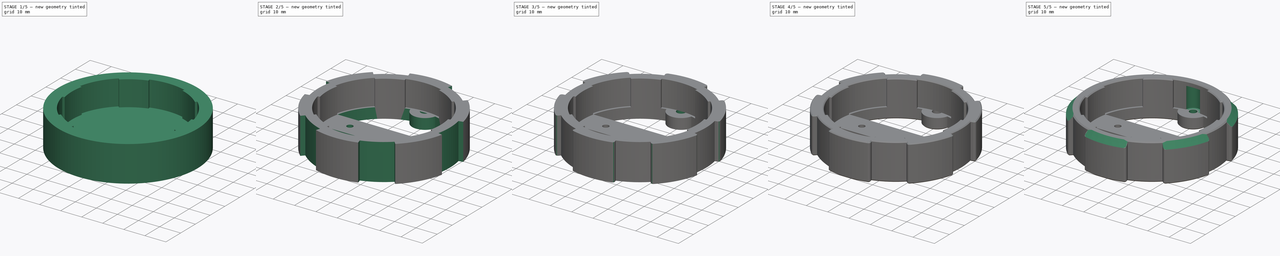
[diagram: build sequence overview — one tinted view per stage of 5, left to right]
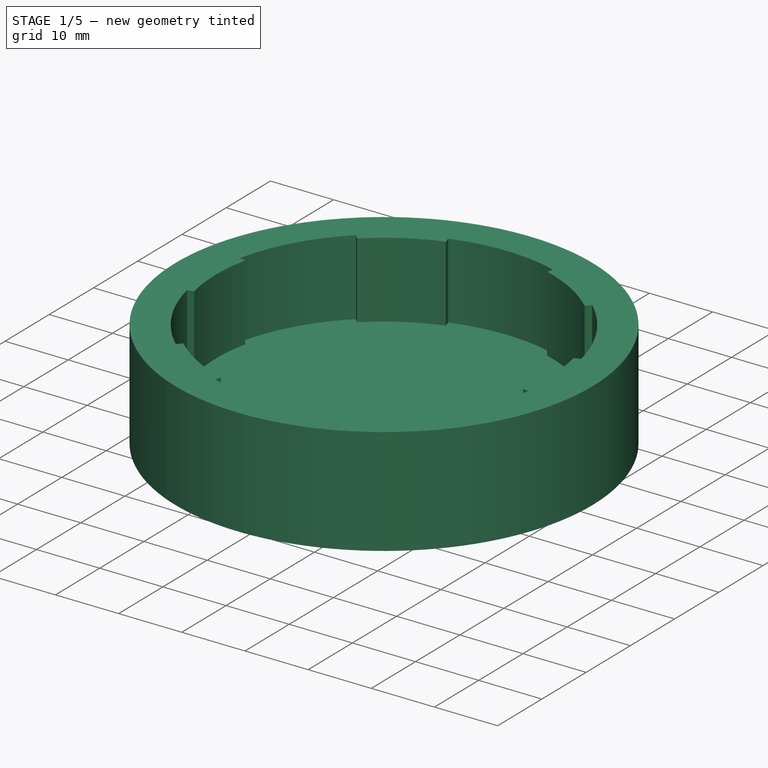
[diagram: stage 1 of 5 — iso view after this stage's code; geometry added in this stage tinted green]
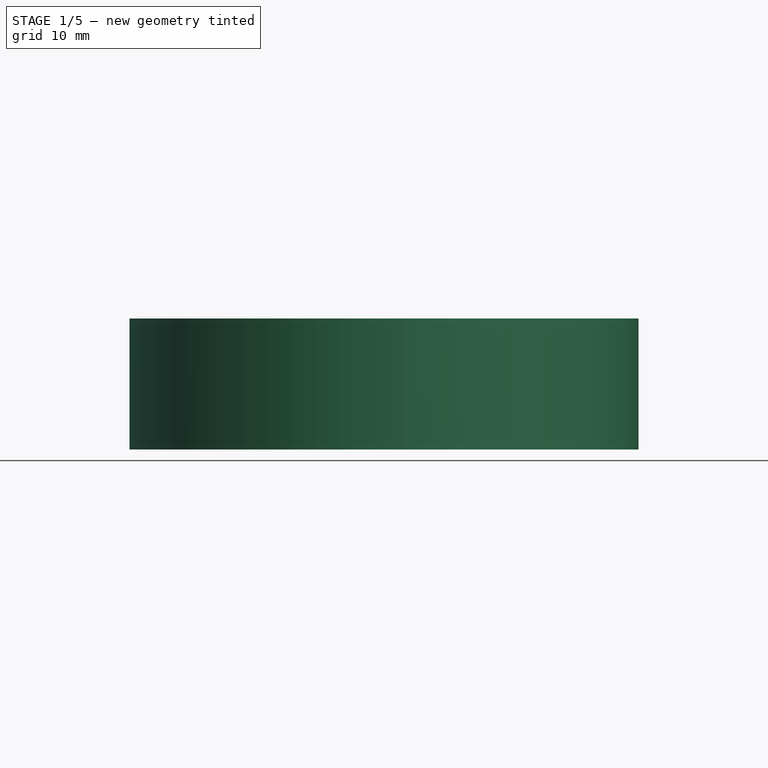
[diagram: stage 1 of 5 — front view after this stage's code; geometry added in this stage tinted green]
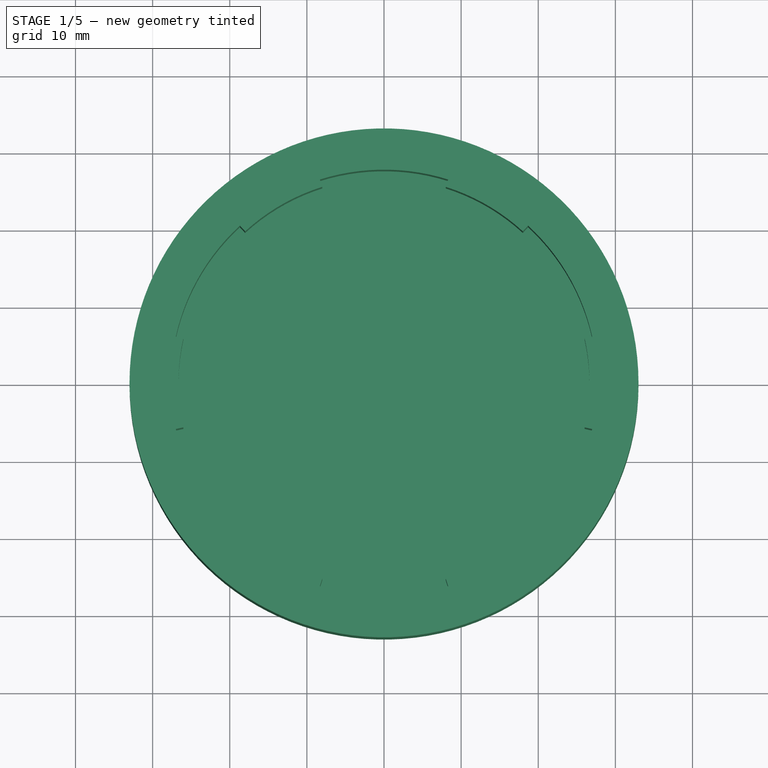
[diagram: stage 1 of 5 — top view after this stage's code; geometry added in this stage tinted green]
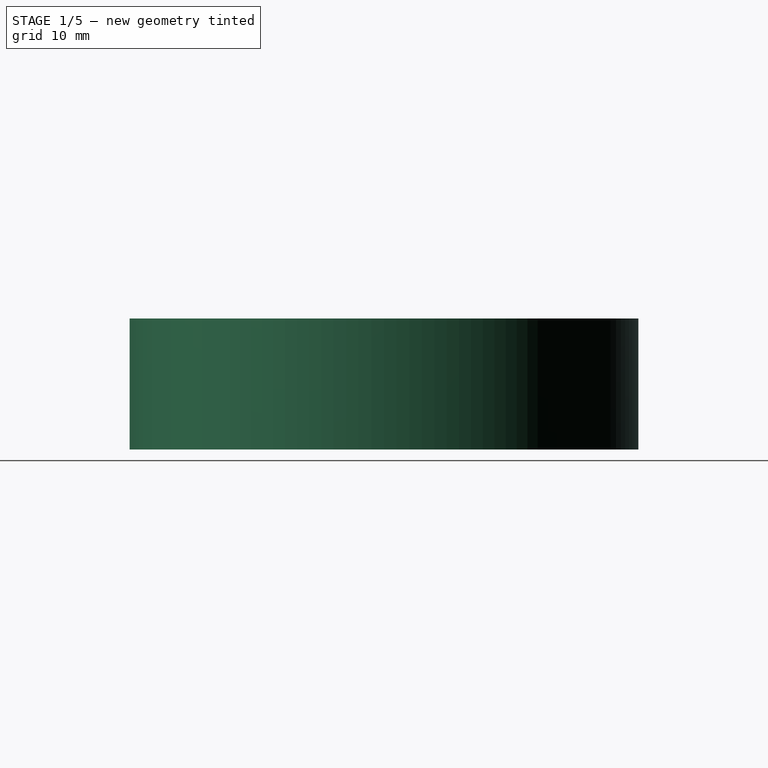
[diagram: stage 1 of 5 — right view after this stage's code; geometry added in this stage tinted green]
FCSTD DOCUMENT  (FreeCAD 0.19R24291 (Git))
Label: therrmometer-mount
License: All rights reserved
LicenseURL: http://en.wikipedia.org/wiki/All_rights_reserved
objects: Sketcher::SketchObject×14, PartDesign::Pocket×10, PartDesign::Pad×3, PartDesign::PolarPattern×2, PartDesign::Chamfer×2, Part::Feature×1, PartDesign::Fillet×1, PartDesign::Mirrored×1, PartDesign::Groove×1, PartDesign::Body×1
note: 53 computed .brp shape members not serialized (recipe doc carries the construction recipe); baked Part::Feature solids carry a one-line shape summary decoded from their .brp

FEATURE [Part::Feature] Body004018001  label="din-mount-type-003"
  Placement = pos=(0,-1,-18) rot=(0,0,1;3.14159rad)
FEATURE [Sketcher::SketchObject] Sketch006
  FullyConstrained = true
  MapMode = 5
  Support = -> [XY_Plane001]
  sketch-geometry (1):
    g0: Circle CenterX=0 CenterY=0 CenterZ=0 NormalX=0 NormalY=0 NormalZ=1 AngleXU=0 Radius=33
  constraints (2):
    c: Coincident(g0,g-1)
    c: Radius(g0) = 33
FEATURE [PartDesign::Pad] Pad001
  Direction = (1,1,1)
  Length = 17
  Length2 = 100
  Profile = -> Sketch006
  Type = 0
FEATURE [Sketcher::SketchObject] Sketch007
  FullyConstrained = true
  MapMode = 5
  Placement = pos=(0,0,17) rot=(0,0,1;0rad)
  Support = -> [Pad001]
  sketch-geometry (1):
    g0: Circle CenterX=0 CenterY=0 CenterZ=0 NormalX=0 NormalY=0 NormalZ=1 AngleXU=0 Radius=26.65
  constraints (2):
    c: Coincident(g0,g-1)
    c: Radius(g0) = 26.65
FEATURE [PartDesign::Pocket] Pocket005
  BaseFeature = -> Pad001
  Length = 12
  Length2 = 100
  Profile = -> Sketch007
  Type = 0
FEATURE [Sketcher::SketchObject] Sketch008
  FullyConstrained = true
  MapMode = 5
  Placement = pos=(0,0,17) rot=(0,0,1;0rad)
  Support = -> [Pocket005]
  sketch-geometry (3):
    g0: ArcOfCircle CenterX=0 CenterY=0 CenterZ=0 NormalX=0 NormalY=0 NormalZ=1 AngleXU=0 Radius=27.65 StartAngle=1.26536 EndAngle=1.87623
    g1: LineSegment StartX=-8.31452 StartY=26.3703 StartZ=0 EndX=0 EndY=0 EndZ=0
    g2: LineSegment StartX=0 StartY=0 StartZ=0 EndX=8.31452 EndY=26.3703 EndZ=0
  constraints (8):
    c: Coincident(g0,g-1)
    c: Coincident(g1,g0)
    c: Coincident(g1,g0)
    c: Coincident(g2,g0)
    c: Coincident(g2,g0)
    c: Radius(g0) = 27.65
    c: Angle(g2,g1) = 0.610865
    c: Angle(g2,g-2) = 0.305433
FEATURE [PartDesign::Pocket] Pocket006
  BaseFeature = -> Pocket005
  Length = 12
  Length2 = 100
  Profile = -> Sketch008
  Type = 0
FEATURE [PartDesign::PolarPattern] PolarPattern
  Angle = 360
  Axis = -> Sketch008 [N_Axis]
  BaseFeature = -> Pocket006
  Occurrences = 6
  Originals = -> [Pocket006]
  Refine = true
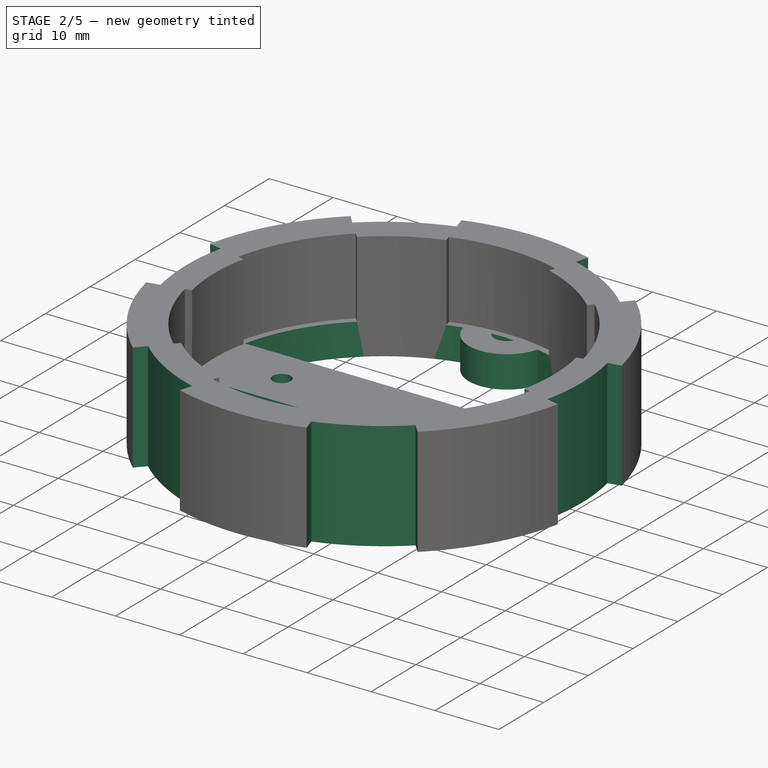
[diagram: stage 2 of 5 — iso view after this stage's code; geometry added in this stage tinted green]
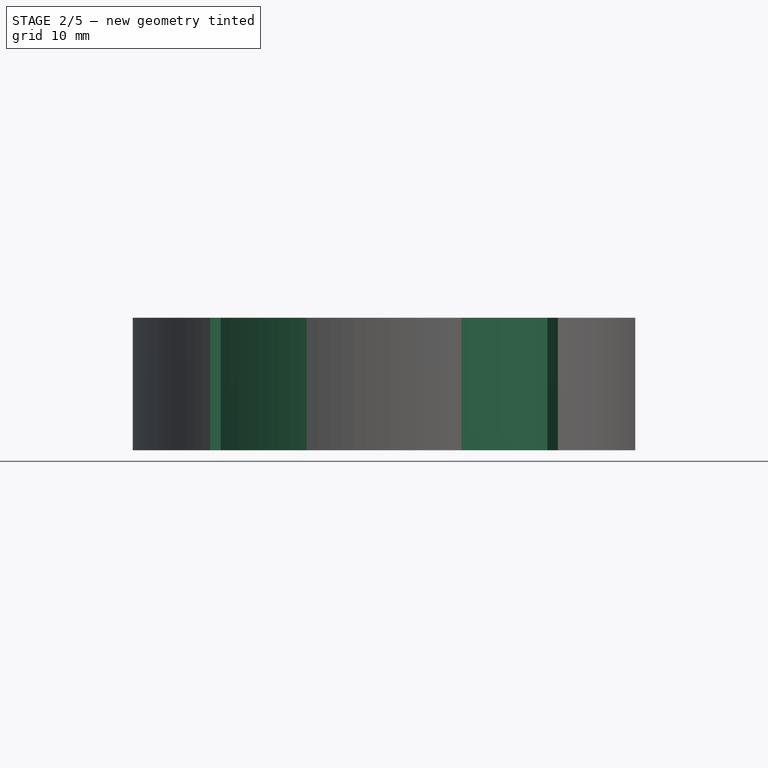
[diagram: stage 2 of 5 — front view after this stage's code; geometry added in this stage tinted green]
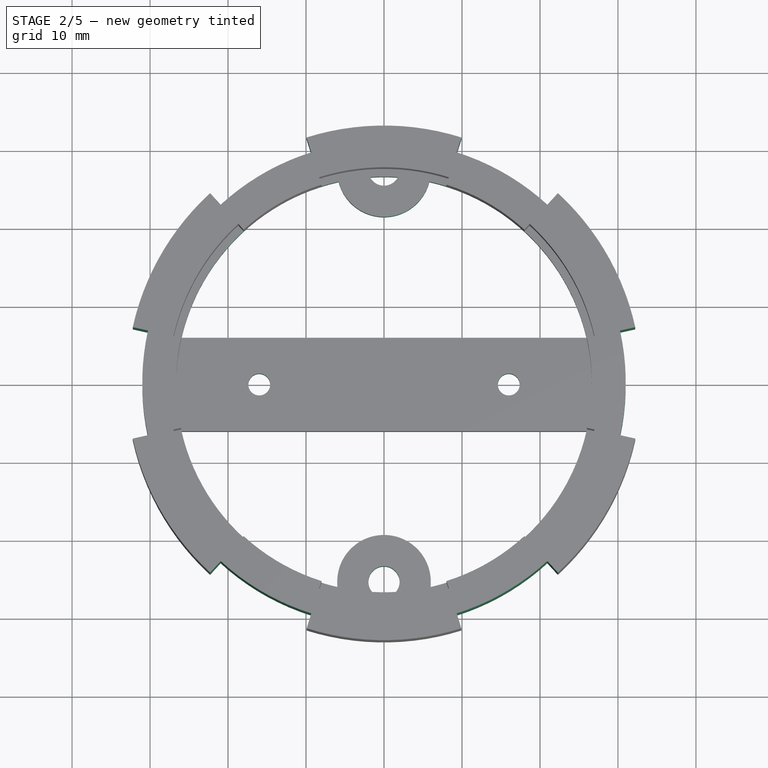
[diagram: stage 2 of 5 — top view after this stage's code; geometry added in this stage tinted green]
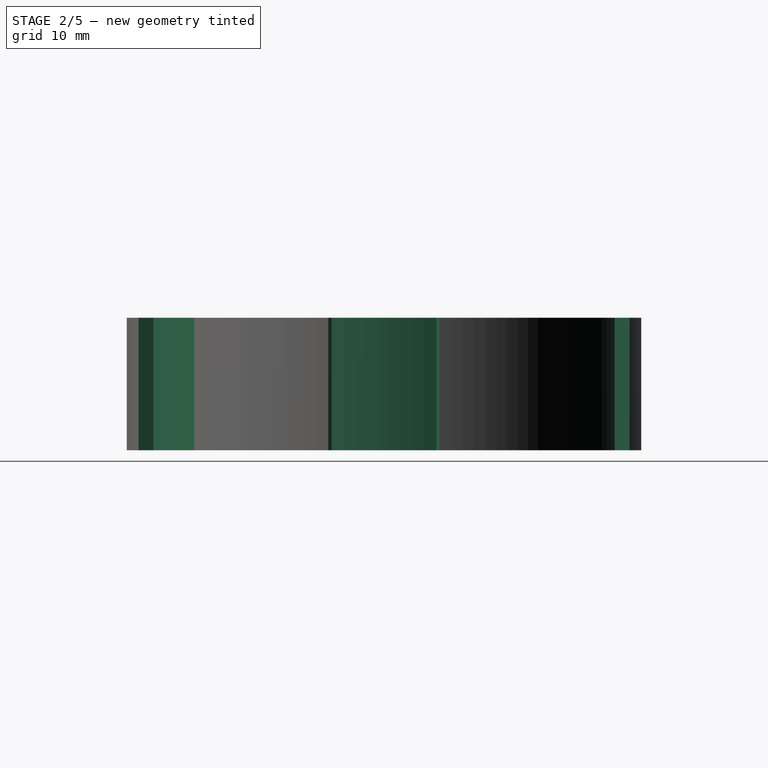
[diagram: stage 2 of 5 — right view after this stage's code; geometry added in this stage tinted green]
FEATURE [Sketcher::SketchObject] Sketch009
  ExternalGeometry = -> [PolarPattern]
  FullyConstrained = false
  MapMode = 5
  Placement = pos=(0,0,17) rot=(0,0,1;0rad)
  Support = -> [PolarPattern]
  sketch-geometry (7):
    g0: ArcOfCircle CenterX=0 CenterY=0 CenterZ=0 NormalX=0 NormalY=0 NormalZ=1 AngleXU=0 Radius=33 StartAngle=0.829031 EndAngle=1.26536
    g1: ArcOfCircle CenterX=0 CenterY=0 CenterZ=0 NormalX=0 NormalY=0 NormalZ=1 AngleXU=0 Radius=31 StartAngle=0.829031 EndAngle=1.26536
    g2: LineSegment StartX=9.32188 StartY=29.5652 StartZ=0 EndX=9.92329 EndY=31.4727 EndZ=0
    g3: LineSegment StartX=20.9433 StartY=22.8556 StartZ=0 EndX=22.2945 EndY=24.3302 EndZ=0
    g4: LineSegment StartX=0 StartY=0 StartZ=0 EndX=9.32188 EndY=29.5652 EndZ=0
    g5: LineSegment StartX=0 StartY=0 StartZ=0 EndX=20.9433 EndY=22.8556 EndZ=0
    g6: LineSegment StartX=0 StartY=0 StartZ=0 EndX=15.2007 EndY=27.0174 EndZ=0
  constraints (18):
    c: Coincident(g0,g-1)
    c: Coincident(g1,g0)
    c: Coincident(g2,g1)
    c: Coincident(g2,g0)
    c: Coincident(g3,g1)
    c: Coincident(g3,g0)
    c: Coincident(g4,g0)
    c: Coincident(g4,g1)
    c: Coincident(g5,g0)
    c: Coincident(g5,g1)
    c: Parallel(g4,g2)
    c: Parallel(g5,g3)
    c: Equal(g-3,g0)
    c: Coincident(g6,g0)
    c: PointOnObject(g6,g1)
    c: Parallel(g-4,g2)
    c: Parallel(g-5,g3)
    c: Radius(g1) = 31
FEATURE [PartDesign::Pocket] Pocket007
  BaseFeature = -> PolarPattern
  Length = 5
  Length2 = 100
  Profile = -> Sketch009
  Type = 1
FEATURE [PartDesign::PolarPattern] PolarPattern001
  Angle = 360
  Axis = -> Sketch009 [N_Axis]
  BaseFeature = -> Pocket007
  Occurrences = 6
  Originals = -> [Pocket007]
FEATURE [Sketcher::SketchObject] Sketch010
  ExternalGeometry = -> [PolarPattern001]
  FullyConstrained = true
  MapMode = 5
  Placement = pos=(0,0,5) rot=(0,0,1;0rad)
  Support = -> [PolarPattern001]
  sketch-geometry (6):
    g0: ArcOfCircle CenterX=0 CenterY=0 CenterZ=0 NormalX=0 NormalY=0 NormalZ=1 AngleXU=0 Radius=26.65 StartAngle=0.227087 EndAngle=2.91451
    g1: ArcOfCircle CenterX=0 CenterY=0 CenterZ=0 NormalX=0 NormalY=0 NormalZ=1 AngleXU=0 Radius=26.65 StartAngle=3.36868 EndAngle=6.0561
    g2: LineSegment StartX=-25.9658 StartY=-6 StartZ=0 EndX=25.9658 EndY=-6 EndZ=0
    g3: LineSegment StartX=-25.9658 StartY=6 StartZ=0 EndX=25.9658 EndY=6 EndZ=0
    g4: Circle CenterX=-16 CenterY=0 CenterZ=0 NormalX=0 NormalY=0 NormalZ=1 AngleXU=0 Radius=1.4
    g5: Circle CenterX=16 CenterY=0 CenterZ=0 NormalX=0 NormalY=0 NormalZ=1 AngleXU=0 Radius=1.4
  constraints (18):
    c: Coincident(g0,g-1)
    c: Coincident(g1,g0)
    c: Coincident(g2,g1)
    c: Coincident(g2,g1)
    c: Horizontal(g2)
    c: Coincident(g3,g0)
    c: Coincident(g3,g0)
    c: Horizontal(g3)
    c: Equal(g0,g1)
    c: DistanceY(g0,g0) = 6
    c: DistanceY(g1,g0) = 6
    c: PointOnObject(g4,g-1)
    c: PointOnObject(g5,g-1)
    c: DistanceX(g4,g0) = 16
    c: DistanceX(g0,g5) = 16
    c: Equal(g5,g4)
    c: Radius(g5) = 1.4
    c: Equal(g-3,g0)
FEATURE [PartDesign::Pocket] Pocket008
  BaseFeature = -> PolarPattern001
  Length = 5
  Length2 = 100
  Profile = -> Sketch010
  Refine = true
  Type = 1
FEATURE [Sketcher::SketchObject] Sketch011
  FullyConstrained = true
  MapMode = 5
  Placement = pos=(0,0,0) rot=(1,0,0;3.14159rad)
  Support = -> [Pocket008]
  sketch-geometry (10):
    g0: Circle CenterX=0 CenterY=25.3 CenterZ=0 NormalX=0 NormalY=0 NormalZ=1 AngleXU=0 Radius=2
    g1: Circle CenterX=0 CenterY=-27.5 CenterZ=0 NormalX=0 NormalY=0 NormalZ=1 AngleXU=0 Radius=2
    g2: ArcOfCircle CenterX=0 CenterY=25.3 CenterZ=0 NormalX=0 NormalY=0 NormalZ=1 AngleXU=0 Radius=6 StartAngle=3.14159 EndAngle=6.28319
    g3: ArcOfCircle CenterX=0 CenterY=-27.5 CenterZ=0 NormalX=0 NormalY=0 NormalZ=1 AngleXU=0 Radius=6 StartAngle=0 EndAngle=3.14159
    g4: LineSegment StartX=-6 StartY=25.3 StartZ=0 EndX=-6 EndY=28.3 EndZ=0
    g5: LineSegment StartX=-6 StartY=28.3 StartZ=0 EndX=6 EndY=28.3 EndZ=0
    g6: LineSegment StartX=6 StartY=28.3 StartZ=0 EndX=6 EndY=25.3 EndZ=0
    g7: LineSegment StartX=-6 StartY=-27.5 StartZ=0 EndX=-6 EndY=-30.5 EndZ=0
    g8: LineSegment StartX=-6 StartY=-30.5 StartZ=0 EndX=6 EndY=-30.5 EndZ=0
    g9: LineSegment StartX=6 StartY=-30.5 StartZ=0 EndX=6 EndY=-27.5 EndZ=0
  constraints (28):
    c: PointOnObject(g0,g-2)
    c: PointOnObject(g1,g-2)
    c: DistanceY(g1,g0) = 52.8
    c: DistanceY(g1,g-1) = 27.5
    c: Equal(g1,g0)
    c: Radius(g0) = 2
    c: Coincident(g2,g0)
    c: Coincident(g3,g1)
    c: Horizontal(g3,g1)
    c: Horizontal(g1,g3)
    c: Horizontal(g2,g0)
    c: Horizontal(g0,g2)
    c: Equal(g3,g2)
    c: Tangent(g2,g4) = 1.5708
    c: Coincident(g4,g5)
    c: Horizontal(g5)
    c: Coincident(g5,g6)
    c: Coincident(g6,g2)
    c: Vertical(g6)
    c: Tangent(g3,g7) = -1.5708
    c: Coincident(g7,g8)
    c: Horizontal(g8)
    c: Coincident(g8,g9)
    c: Coincident(g9,g3)
    c: Vertical(g9)
    c: Radius(g3) = 6
    c: DistanceY(g7,g1) = 3
    c: DistanceY(g0,g4) = 3
FEATURE [PartDesign::Pad] Pad002
  BaseFeature = -> Pocket008
  Direction = (1,1,1)
  Length = 5
  Length2 = 100
  Profile = -> Sketch011
  Refine = true
  Reversed = true
  Type = 0
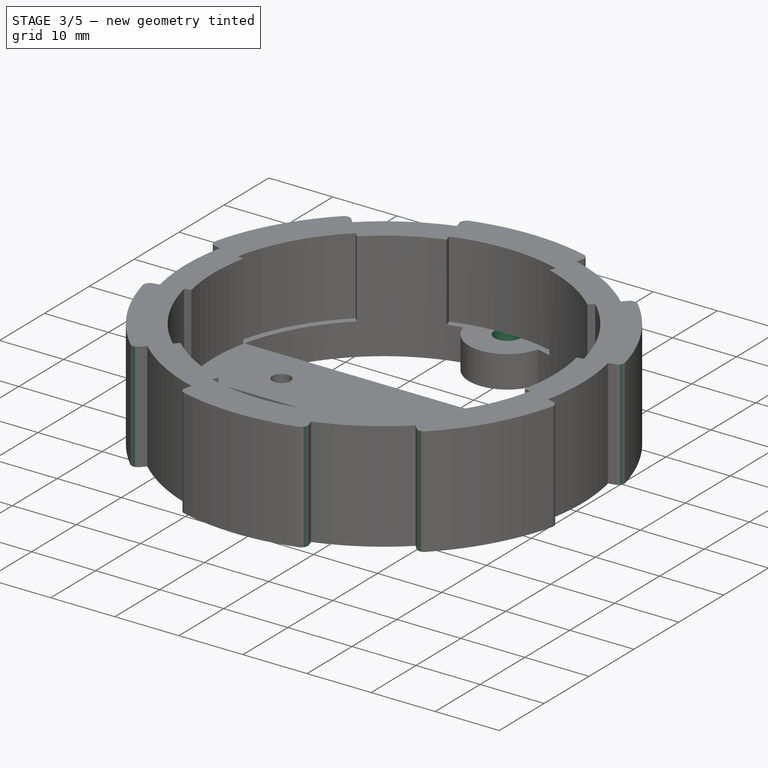
[diagram: stage 3 of 5 — iso view after this stage's code; geometry added in this stage tinted green]
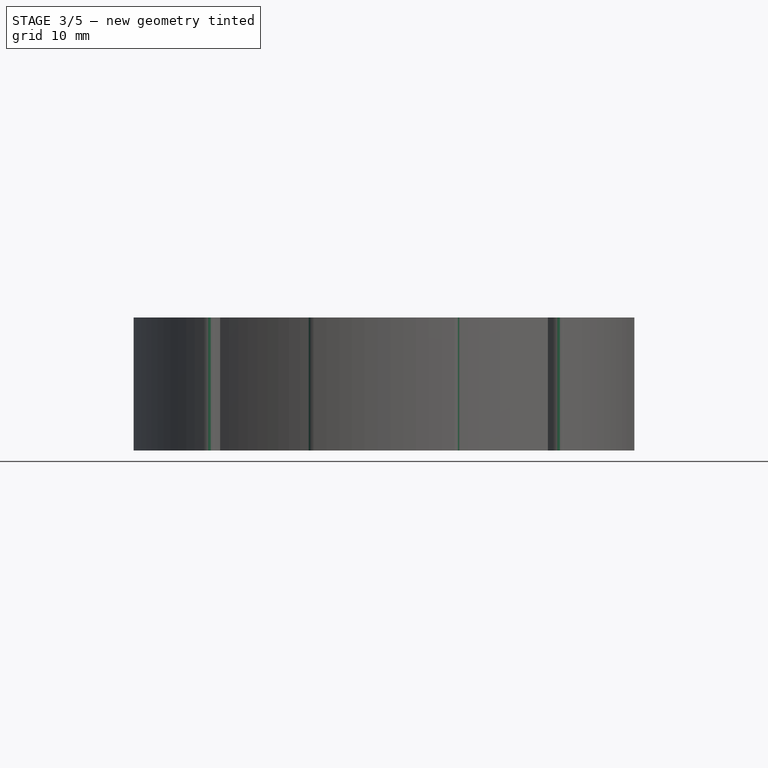
[diagram: stage 3 of 5 — front view after this stage's code; geometry added in this stage tinted green]
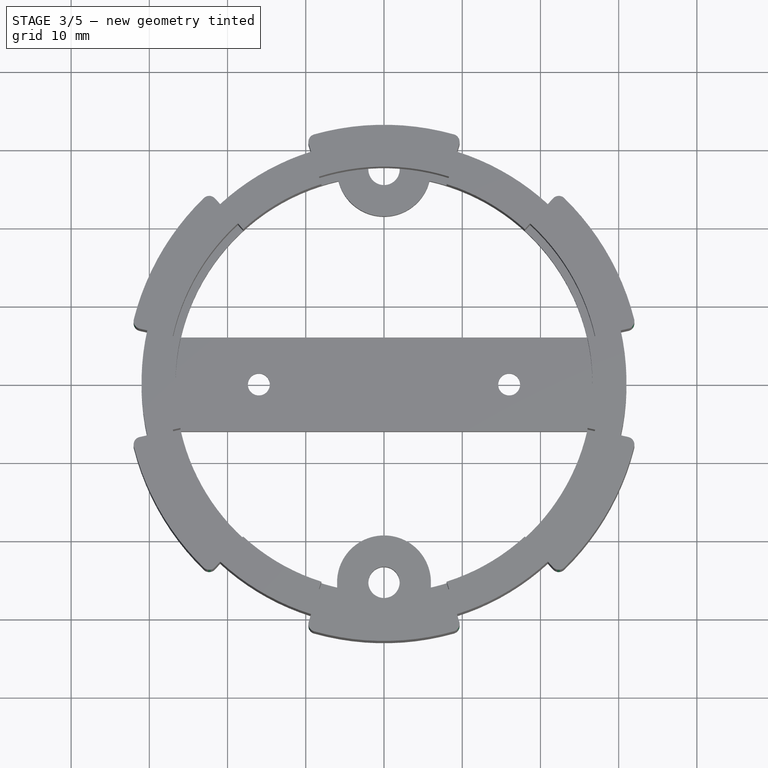
[diagram: stage 3 of 5 — top view after this stage's code; geometry added in this stage tinted green]
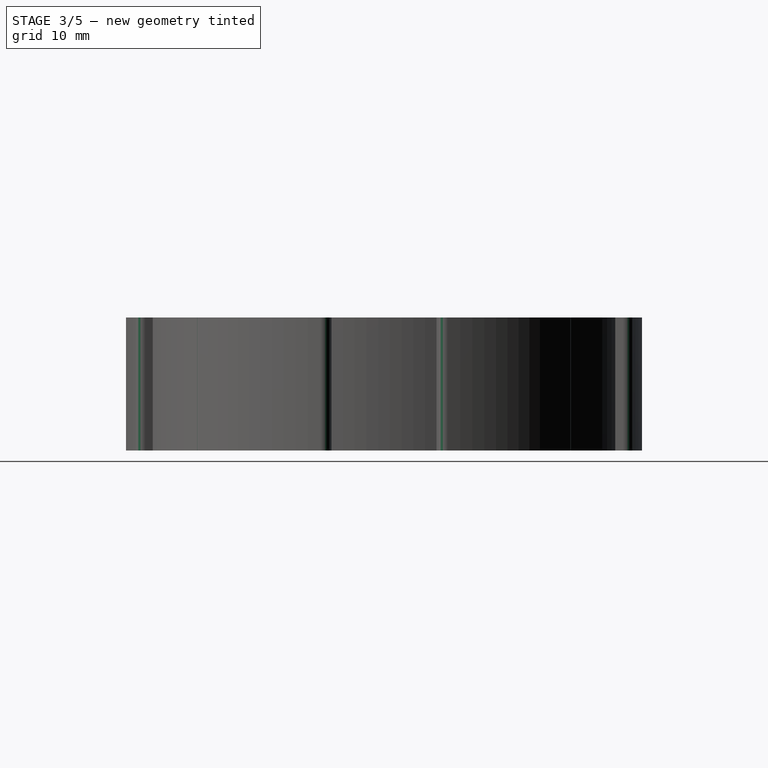
[diagram: stage 3 of 5 — right view after this stage's code; geometry added in this stage tinted green]
FEATURE [Sketcher::SketchObject] Sketch012
  ExternalGeometry = -> [Pad002]
  FullyConstrained = true
  MapMode = 5
  Placement = pos=(0,0,0) rot=(1,0,0;3.14159rad)
  Support = -> [Pad002]
  sketch-geometry (2):
    g0: Circle CenterX=0 CenterY=-27.5 CenterZ=0 NormalX=0 NormalY=0 NormalZ=1 AngleXU=0 Radius=2
    g1: Circle CenterX=0 CenterY=25.3 CenterZ=0 NormalX=0 NormalY=0 NormalZ=1 AngleXU=0 Radius=2
  constraints (4):
    c: Coincident(g0,g-4)
    c: Coincident(g1,g-3)
    c: Equal(g1,g-3)
    c: Equal(g-3,g0)
FEATURE [PartDesign::Pocket] Pocket009
  BaseFeature = -> Pad002
  Length = 5
  Length2 = 100
  Profile = -> Sketch012
  Type = 0
FEATURE [PartDesign::Fillet] Fillet004
  Base = -> Pocket009 [Edge106,Edge104,Edge112,Edge114,Edge111,Edge109,Edge103,Edge101,Edge4,Edge2,Edge97,Edge98]
  BaseFeature = -> Pocket009
  Radius = 1
  SupportTransform = false
FEATURE [Sketcher::SketchObject] Sketch013
  ExternalGeometry = -> [Fillet004]
  FullyConstrained = true
  MapMode = 5
  Placement = pos=(0,0,0) rot=(1,0,0;3.14159rad)
  Support = -> [Fillet004]
  sketch-geometry (2):
    g0: Circle CenterX=16 CenterY=0 CenterZ=0 NormalX=0 NormalY=0 NormalZ=1 AngleXU=0 Radius=2.5
    g1: Circle CenterX=-16 CenterY=0 CenterZ=0 NormalX=0 NormalY=0 NormalZ=1 AngleXU=0 Radius=2.5
  constraints (4):
    c: Coincident(g0,g-4)
    c: Radius(g0) = 2.5
    c: Coincident(g1,g-5)
    c: Equal(g1,g0)
FEATURE [PartDesign::Pocket] Pocket010
  BaseFeature = -> Fillet004
  Length = 2.8
  Length2 = 100
  Profile = -> Sketch013
  Type = 0
FEATURE [Sketcher::SketchObject] Sketch014
  ExternalGeometry = -> [Pocket010]
  FullyConstrained = true
  MapMode = 5
  Placement = pos=(0,0,2.8) rot=(1,0,0;3.14159rad)
  Support = -> [Pocket010]
  sketch-geometry (4):
    g0: ArcOfCircle CenterX=0 CenterY=25.3 CenterZ=0 NormalX=0 NormalY=0 NormalZ=1 AngleXU=0 Radius=2 StartAngle=0.775397 EndAngle=3.91699
    g1: ArcOfCircle CenterX=0 CenterY=25.3 CenterZ=0 NormalX=0 NormalY=0 NormalZ=1 AngleXU=0 Radius=2 StartAngle=3.91699 EndAngle=7.05858
    g2: LineSegment StartX=1.42829 StartY=26.7 StartZ=0 EndX=1.42829 EndY=26.7 EndZ=0
    g3: LineSegment StartX=-1.42829 StartY=23.9 StartZ=0 EndX=-1.42829 EndY=23.9 EndZ=0
  constraints (12):
    c: Coincident(g0,g-3)
    c: Coincident(g1,g0)
    c: Coincident(g2,g0)
    c: Coincident(g2,g1)
    c: Horizontal(g2)
    c: Coincident(g3,g0)
    c: Coincident(g3,g1)
    c: Horizontal(g3)
    c: Equal(g0,g-3)
    c: Equal(g-3,g1)
    c: DistanceY(g0,g0) = 1.4
    c: DistanceY(g0,g0) = 1.4
FEATURE [PartDesign::Pocket] Pocket011
  BaseFeature = -> Pocket010
  Length = 0.2
  Length2 = 100
  Profile = -> Sketch014
  Type = 0
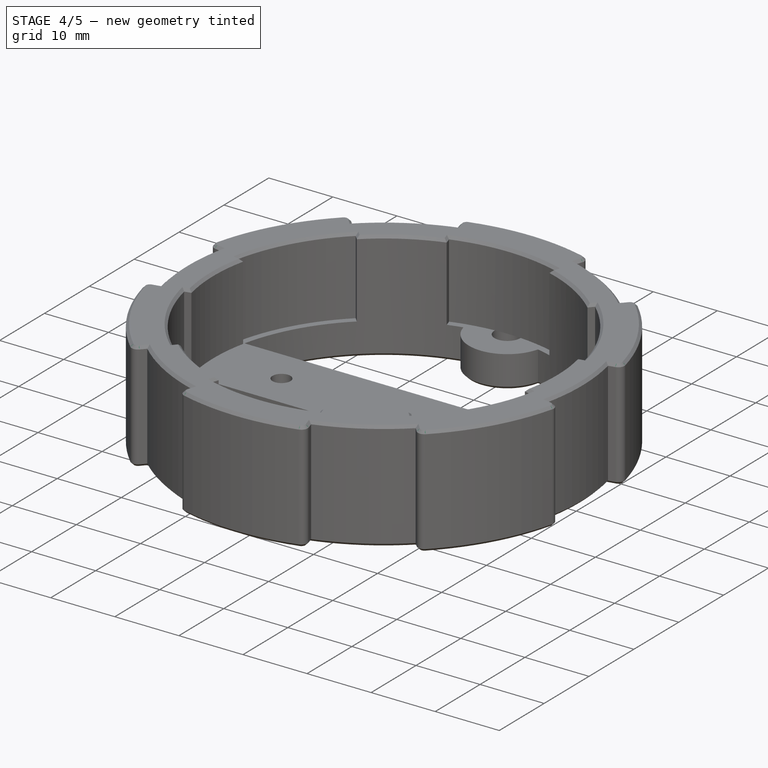
[diagram: stage 4 of 5 — iso view after this stage's code; geometry added in this stage tinted green]
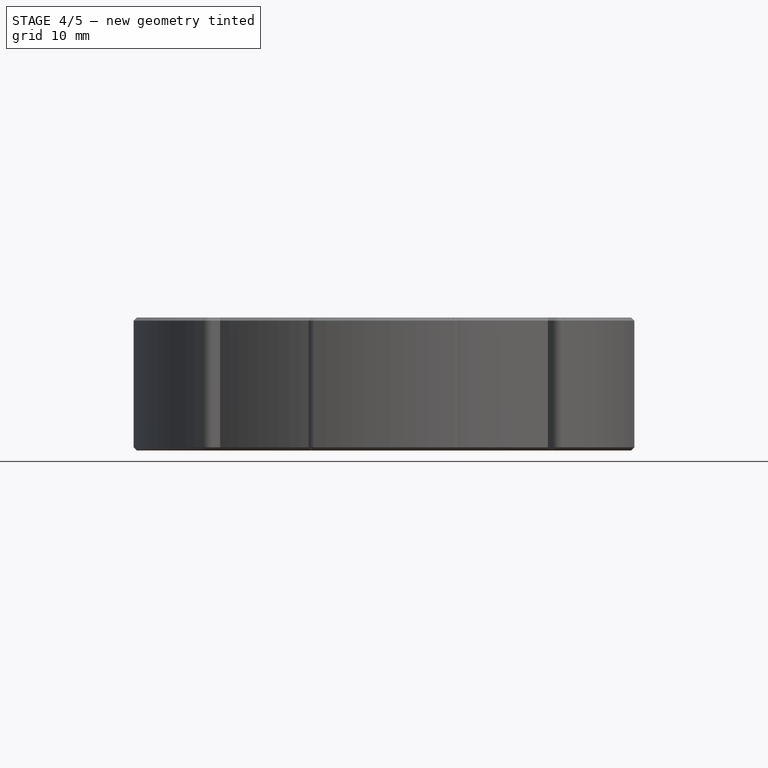
[diagram: stage 4 of 5 — front view after this stage's code; geometry added in this stage tinted green]
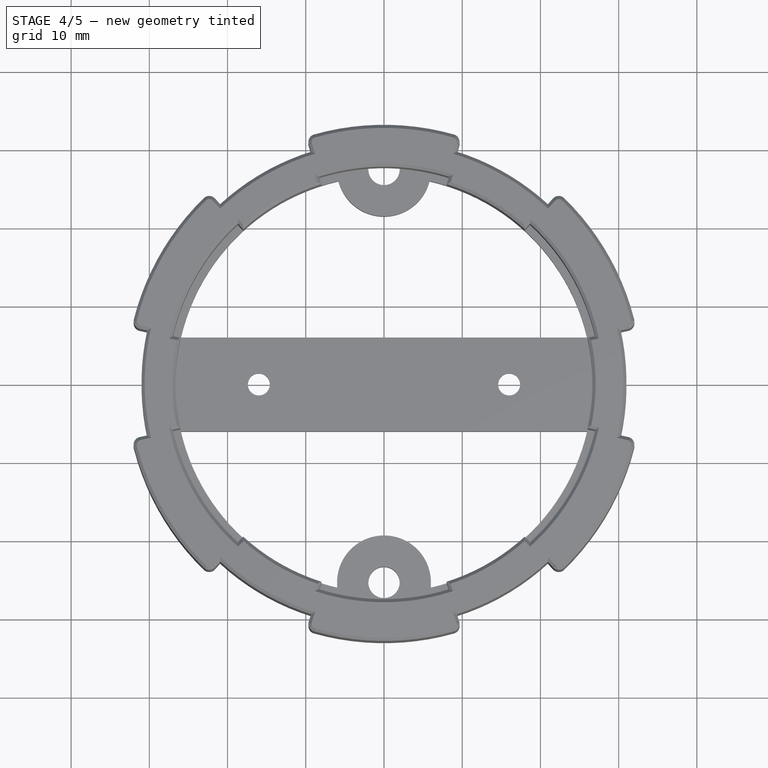
[diagram: stage 4 of 5 — top view after this stage's code; geometry added in this stage tinted green]
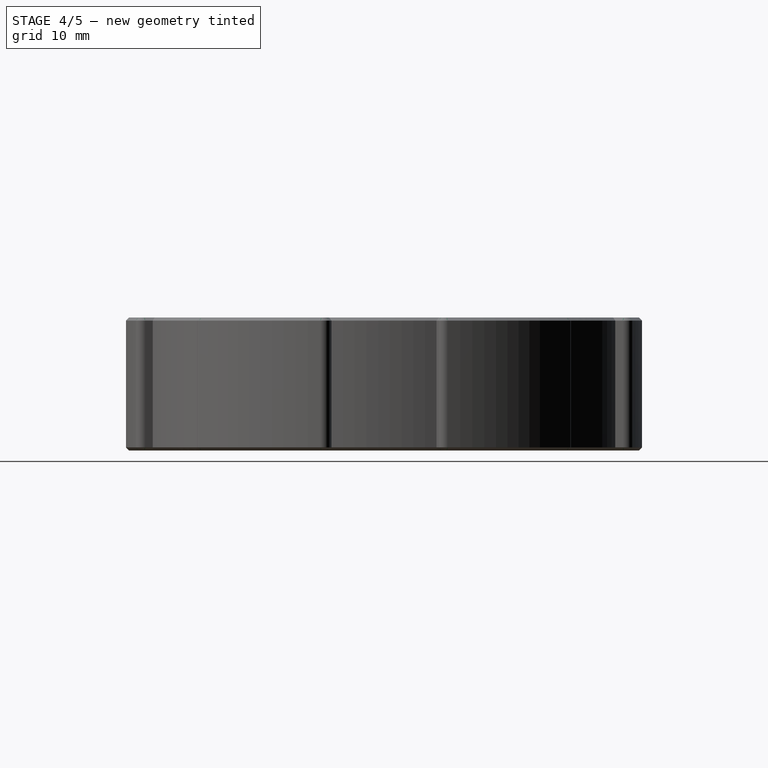
[diagram: stage 4 of 5 — right view after this stage's code; geometry added in this stage tinted green]
FEATURE [Sketcher::SketchObject] Sketch015
  ExternalGeometry = -> [Pocket011]
  FullyConstrained = true
  MapMode = 5
  Placement = pos=(0,0,2.8) rot=(1,0,0;3.14159rad)
  Support = -> [Pocket011]
  sketch-geometry (4):
    g0: ArcOfCircle CenterX=-16 CenterY=0 CenterZ=0 NormalX=0 NormalY=0 NormalZ=1 AngleXU=0 Radius=2.5 StartAngle=2.54721 EndAngle=3.73598
    g1: ArcOfCircle CenterX=-16 CenterY=0 CenterZ=0 NormalX=0 NormalY=0 NormalZ=1 AngleXU=0 Radius=2.5 StartAngle=5.6888 EndAngle=6.87757
    g2: LineSegment StartX=-18.0712 StartY=1.4 StartZ=0 EndX=-13.9288 EndY=1.4 EndZ=0
    g3: LineSegment StartX=-18.0712 StartY=-1.4 StartZ=0 EndX=-13.9288 EndY=-1.4 EndZ=0
  constraints (12):
    c: Coincident(g0,g-3)
    c: Coincident(g1,g0)
    c: Coincident(g2,g0)
    c: Coincident(g2,g1)
    c: Horizontal(g2)
    c: Coincident(g3,g0)
    c: Coincident(g3,g1)
    c: Horizontal(g3)
    c: Equal(g0,g-3)
    c: Equal(g-3,g1)
    c: DistanceY(g0,g0) = 1.4
    c: DistanceY(g0,g0) = 1.4
FEATURE [PartDesign::Pocket] Pocket012
  BaseFeature = -> Pocket011
  Length = 0.2
  Length2 = 100
  Profile = -> Sketch015
  Type = 0
FEATURE [PartDesign::Mirrored] Mirrored
  BaseFeature = -> Pocket012
  MirrorPlane = -> Sketch015 [V_Axis]
  Originals = -> [Pocket012]
FEATURE [Sketcher::SketchObject] Sketch016
  ExternalGeometry = -> [Mirrored]
  FullyConstrained = true
  MapMode = 5
  Placement = pos=(0,0,3) rot=(1,0,0;3.14159rad)
  Support = -> [Mirrored]
  sketch-geometry (8):
    g0: LineSegment StartX=-17.4 StartY=1.4 StartZ=0 EndX=-14.6 EndY=1.4 EndZ=0
    g1: LineSegment StartX=-14.6 StartY=1.4 StartZ=0 EndX=-14.6 EndY=-1.4 EndZ=0
    g2: LineSegment StartX=-14.6 StartY=-1.4 StartZ=0 EndX=-17.4 EndY=-1.4 EndZ=0
    g3: LineSegment StartX=-17.4 StartY=-1.4 StartZ=0 EndX=-17.4 EndY=1.4 EndZ=0
    g4: LineSegment StartX=14.6 StartY=1.4 StartZ=0 EndX=17.4 EndY=1.4 EndZ=0
    g5: LineSegment StartX=17.4 StartY=1.4 StartZ=0 EndX=17.4 EndY=-1.4 EndZ=0
    g6: LineSegment StartX=17.4 StartY=-1.4 StartZ=0 EndX=14.6 EndY=-1.4 EndZ=0
    g7: LineSegment StartX=14.6 StartY=-1.4 StartZ=0 EndX=14.6 EndY=1.4 EndZ=0
  constraints (24):
    c: Coincident(g0,g1)
    c: Coincident(g1,g2)
    c: Coincident(g2,g3)
    c: Coincident(g3,g0)
    c: Horizontal(g0)
    c: Horizontal(g2)
    c: Vertical(g1)
    c: Vertical(g3)
    c: PointOnObject(g0,g-3)
    c: PointOnObject(g1,g-5)
    c: Coincident(g4,g5)
    c: Coincident(g5,g6)
    c: Coincident(g6,g7)
    c: Coincident(g7,g4)
    c: Horizontal(g4)
    c: Horizontal(g6)
    c: Vertical(g5)
    c: Vertical(g7)
    c: PointOnObject(g4,g-6)
    c: PointOnObject(g5,g-8)
    c: Equal(g4,g5)
    c: Equal(g5,g0)
    c: DistanceX(g-4,g0) = 1.4
    c: DistanceX(g-7,g4) = 1.4
FEATURE [PartDesign::Pocket] Pocket013
  BaseFeature = -> Mirrored
  Length = 0.2
  Length2 = 100
  Profile = -> Sketch016
  Type = 0
FEATURE [PartDesign::Chamfer] Chamfer001
  Angle = 45
  Base = -> Pocket013 [Face2,Face5]
  BaseFeature = -> Pocket013
  ChamferType = 0
  FlipDirection = false
  Size = 0.4
  Size2 = 1
  SupportTransform = false
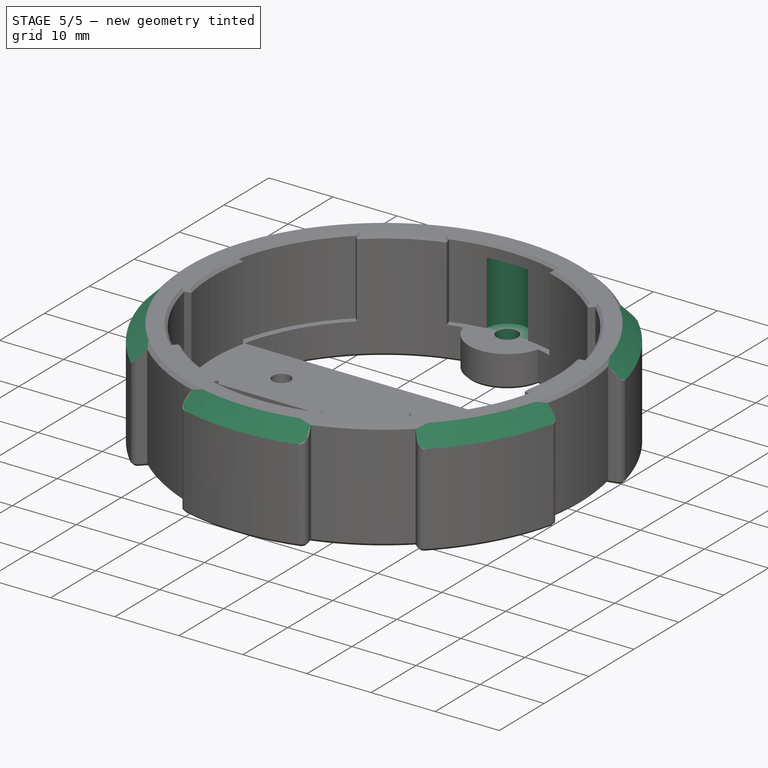
[diagram: stage 5 of 5 — iso view after this stage's code; geometry added in this stage tinted green]
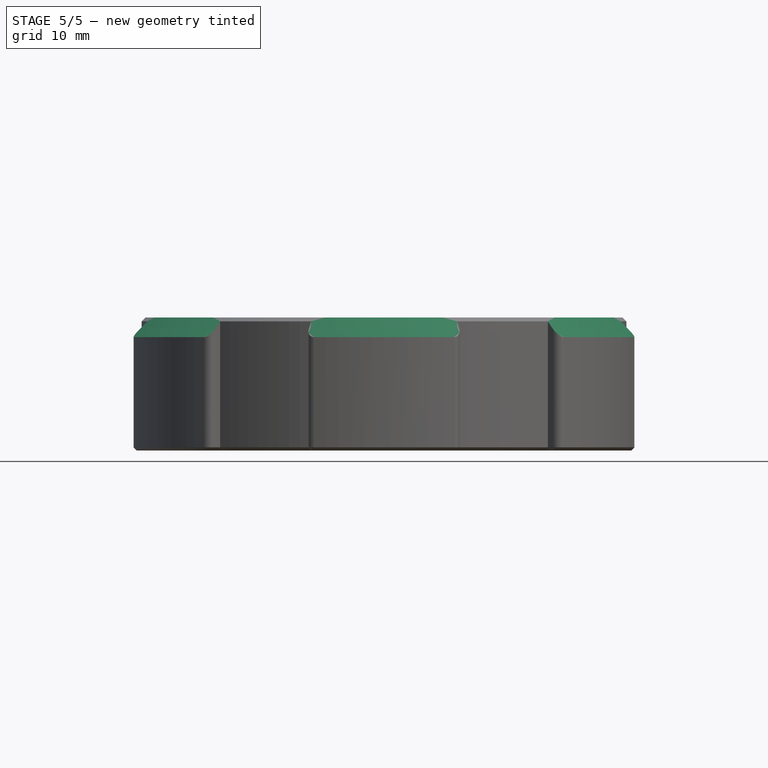
[diagram: stage 5 of 5 — front view after this stage's code; geometry added in this stage tinted green]
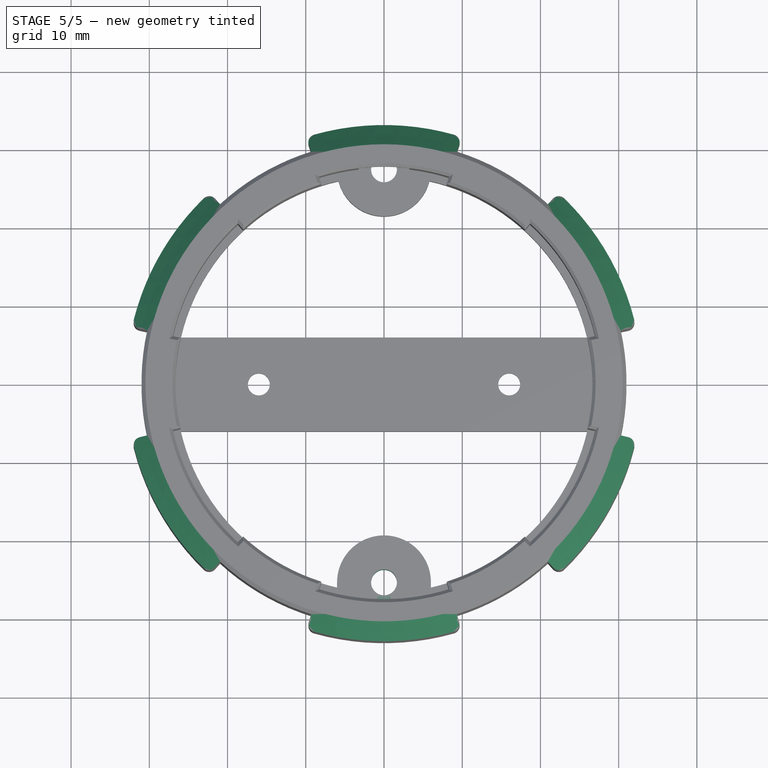
[diagram: stage 5 of 5 — top view after this stage's code; geometry added in this stage tinted green]
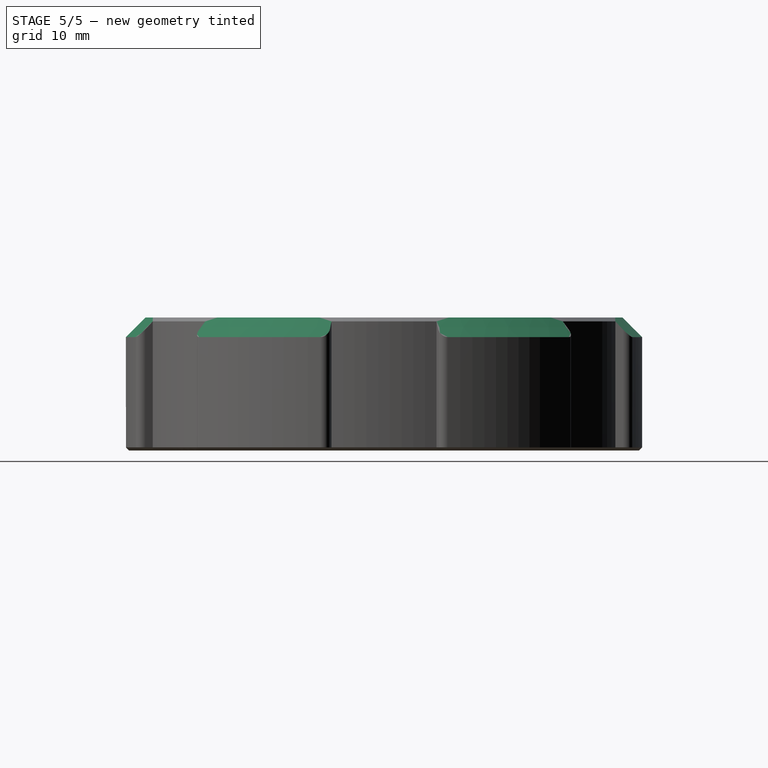
[diagram: stage 5 of 5 — right view after this stage's code; geometry added in this stage tinted green]
FEATURE [Sketcher::SketchObject] Sketch017
  ExternalGeometry = -> [Chamfer001]
  FullyConstrained = true
  MapMode = 5
  Placement = pos=(0,0,0) rot=(0.57735,0.57735,0.57735;2.0944rad)
  Support = -> [YZ_Plane001]
  sketch-geometry (3):
    g0: LineSegment StartX=-30.5 StartY=17 StartZ=0 EndX=-33 EndY=14.5 EndZ=0
    g1: LineSegment StartX=-33 StartY=14.5 StartZ=0 EndX=-33 EndY=17 EndZ=0
    g2: LineSegment StartX=-33 StartY=17 StartZ=0 EndX=-30.5 EndY=17 EndZ=0
  constraints (9):
    c: Coincident(g0,g1)
    c: Vertical(g1)
    c: Coincident(g1,g2)
    c: Coincident(g2,g0)
    c: Horizontal(g2)
    c: Horizontal(g-3,g0)
    c: DistanceX(g0,g-1) = 33
    c: Equal(g1,g2)
    c: DistanceY(g1,g1) = 2.5
FEATURE [PartDesign::Groove] Groove
  Angle = 360
  Axis = (-2e-16,3e-16,1)
  Base = (0,0,0)
  BaseFeature = -> Chamfer001
  Profile = -> Sketch017
  ReferenceAxis = -> Sketch017 [V_Axis]
  Reversed = true
FEATURE [Sketcher::SketchObject] Sketch
  ExternalGeometry = -> [Groove]
  FullyConstrained = true
  MapMode = 5
  Placement = pos=(0,1e-16,5) rot=(0,0,1;0rad)
  Support = -> [Groove]
  sketch-geometry (2):
    g0: Circle CenterX=0 CenterY=-25.3 CenterZ=0 NormalX=0 NormalY=0 NormalZ=1 AngleXU=0 Radius=3.25
    g1: Circle CenterX=0 CenterY=27.5 CenterZ=0 NormalX=0 NormalY=0 NormalZ=1 AngleXU=0 Radius=3.25
  constraints (4):
    c: Coincident(g0,g-4)
    c: Coincident(g1,g-3)
    c: Equal(g1,g0)
    c: Radius(g1) = 3.25
FEATURE [PartDesign::Pocket] Pocket
  BaseFeature = -> Groove
  Length = 10
  Length2 = 100
  Profile = -> Sketch
  Reversed = true
  Type = 0
FEATURE [Sketcher::SketchObject] Sketch018
  ExternalGeometry = -> [Pocket]
  FullyConstrained = true
  MapMode = 5
  Placement = pos=(0,0,0) rot=(1,0,0;3.14159rad)
  Support = -> [Pocket]
  sketch-geometry (4):
    g0: Circle CenterX=0 CenterY=-27.5 CenterZ=0 NormalX=0 NormalY=0 NormalZ=1 AngleXU=0 Radius=2.4
    g1: Circle CenterX=0 CenterY=25.3 CenterZ=0 NormalX=0 NormalY=0 NormalZ=1 AngleXU=0 Radius=2.4
    g2: Circle CenterX=0 CenterY=25.3 CenterZ=0 NormalX=0 NormalY=0 NormalZ=1 AngleXU=0 Radius=1.65
    g3: Circle CenterX=0 CenterY=-27.5 CenterZ=0 NormalX=0 NormalY=0 NormalZ=1 AngleXU=0 Radius=1.65
  constraints (8):
    c: Coincident(g0,g-4)
    c: Coincident(g1,g-3)
    c: Equal(g1,g-3)
    c: Equal(g-3,g0)
    c: Coincident(g2,g1)
    c: Coincident(g3,g0)
    c: Equal(g3,g2)
    c: Radius(g2) = 1.65
FEATURE [PartDesign::Pad] Pad
  BaseFeature = -> Pocket
  Direction = (1,1,1)
  Length = 5
  Length2 = 100
  Profile = -> Sketch018
  Refine = true
  Reversed = true
  Type = 0
FEATURE [PartDesign::Chamfer] Chamfer
  Angle = 45
  Base = -> Pad [Edge443,Edge442]
  BaseFeature = -> Pad
  ChamferType = 0
  FlipDirection = false
  Size = 0.4
  Size2 = 1
  SupportTransform = false
FEATURE [PartDesign::Body] Body004018002  label="mounter"
  Group = -> [Sketch006,Pad001,Sketch007,Pocket005,Sketch008,Pocket006,PolarPattern,Sketch009,Pocket007,PolarPattern001,Sketch010,Pocket008,Sketch011,Pad002,Sketch012,Pocket009,Fillet004,Sketch013,Pocket010,Sketch014,Pocket011,Sketch015,Pocket012,Mirrored,Sketch016,Pocket013,Chamfer001,Sketch017,Groove,Sketch,Pocket,Sketch018,Pad,Chamfer]
  Origin = -> Origin001
  Tip = -> Chamfer
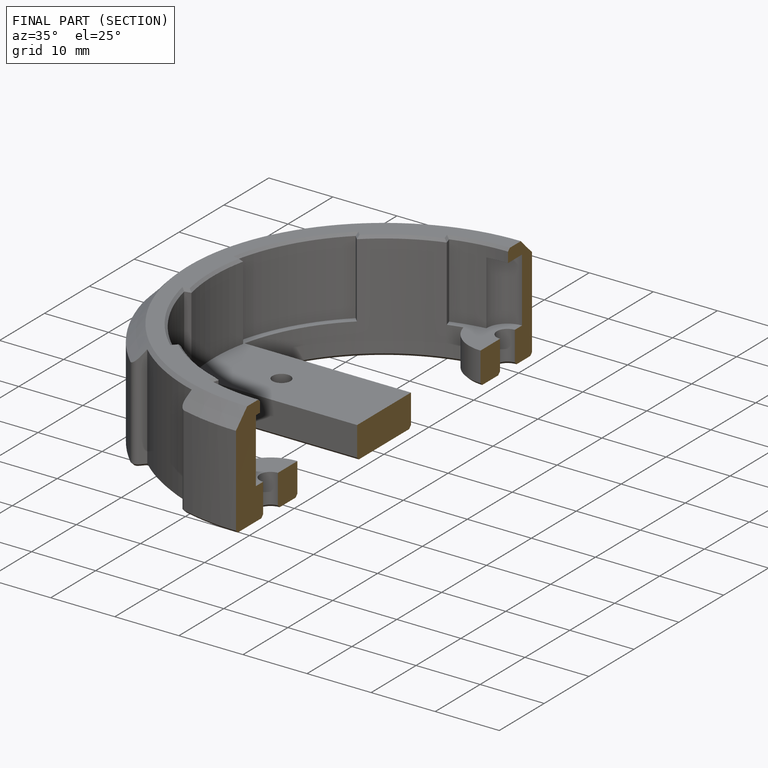
[diagram: finished part — half-section view (interior)]
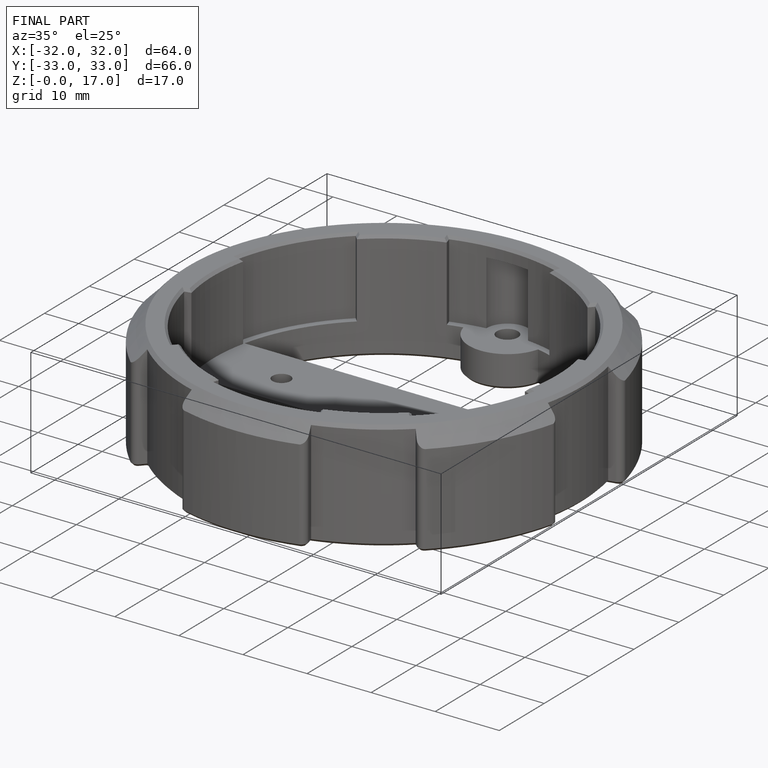
[diagram: finished part — iso view with bounding-box wireframe]
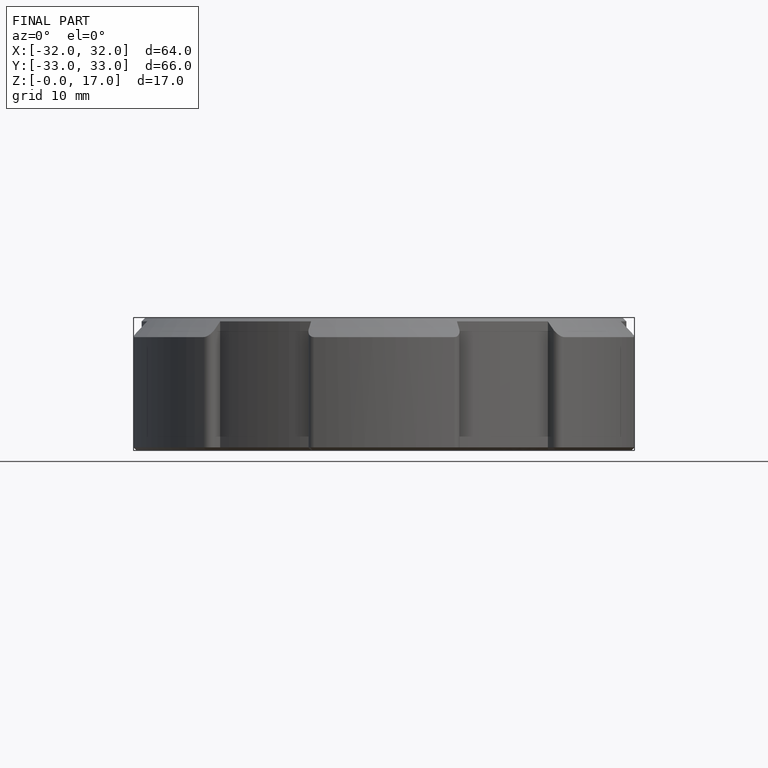
[diagram: finished part — front view with bounding-box wireframe]
